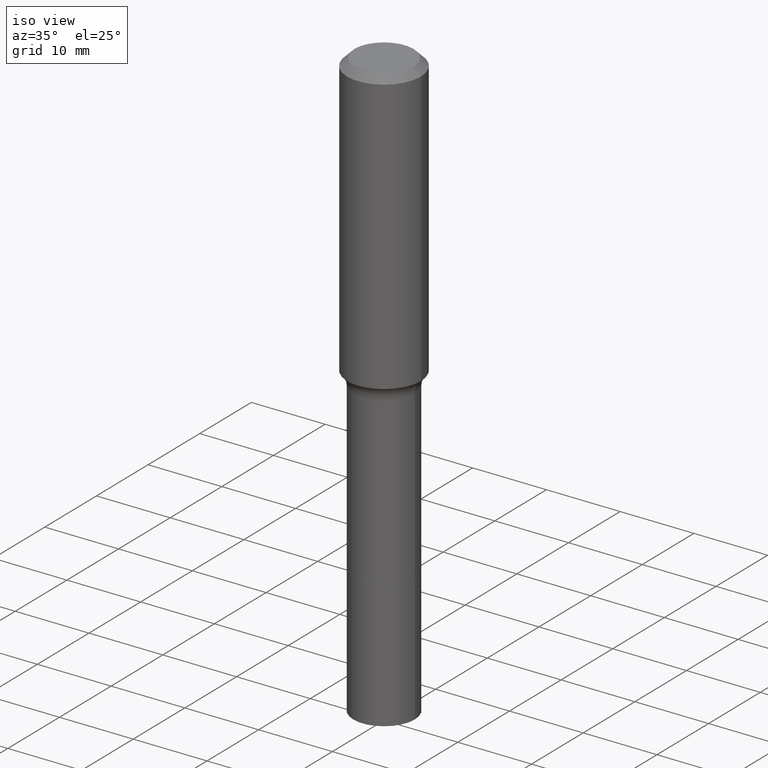
[diagram: clean part render]
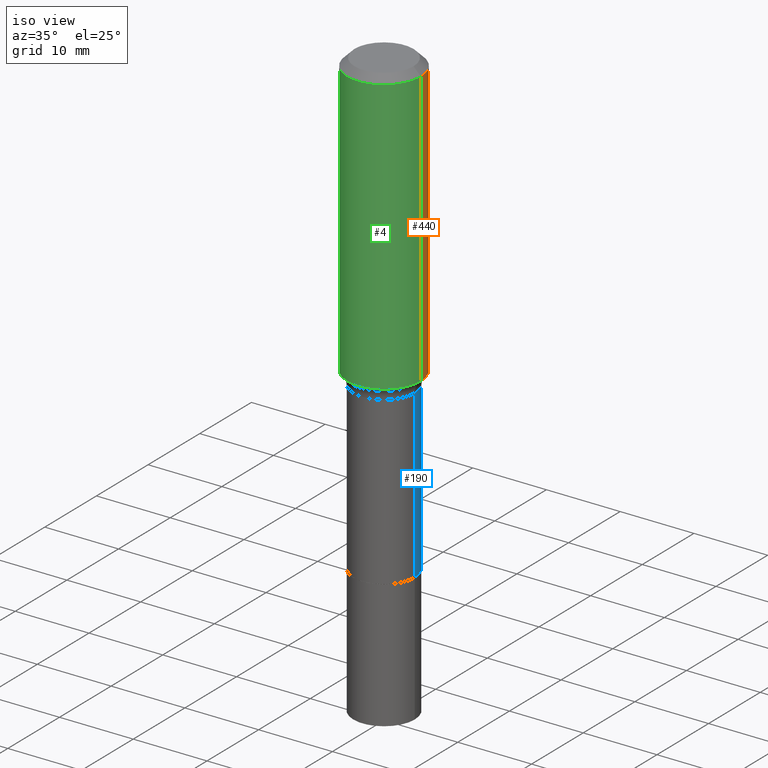
[diagram: same view with three faces highlighted in distinct colors, each labeled with its STEP entity id]
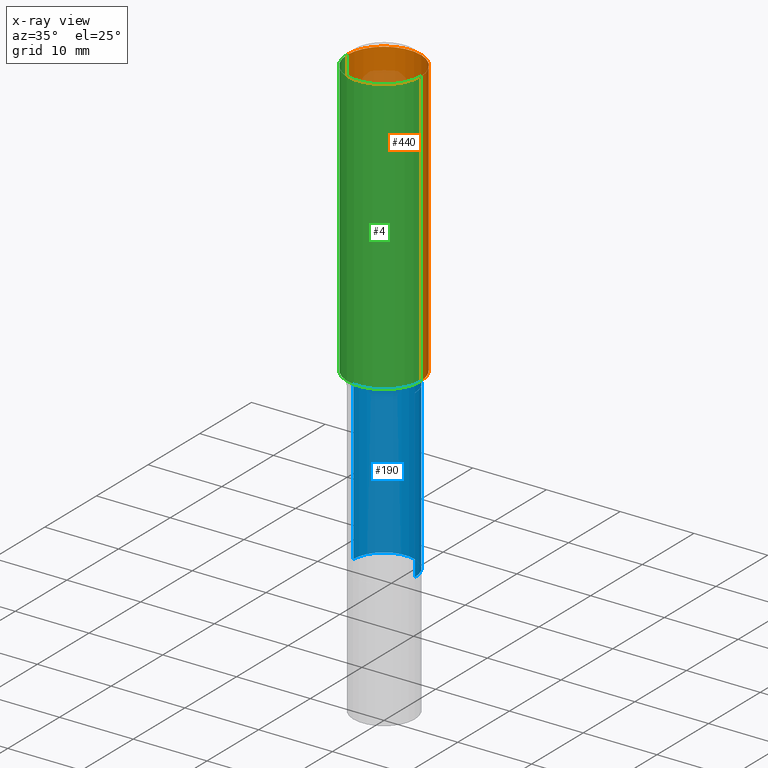
[diagram: x-ray of the same camera — body ghosted, the three highlighted faces saturated]
A machine part, iso view with three faces highlighted in distinct colors.
The next image is the same camera in x-ray (body ghosted, the three faces saturated) — at least one of them is partly hidden behind the body in this view.
Their STEP definitions:

[orange] entity #440 — the highlighted cylindrical surface (partial cylindrical patch) has radius 5 mm, axis along (-0, 0, 1).
#27 = CARTESIAN_POINT ( 'NONE',  ( -0.1968500000000000250, -1.302452302324870387E-15, -0.03937000000000025896 ) ) ;
#28 = VERTEX_POINT ( 'NONE', #80 ) ;
#36 = DIRECTION ( 'NONE',  ( -2.445468806185136597E-29, 3.491481338843145583E-15, 1.000000000000000000 ) ) ;
#43 = AXIS2_PLACEMENT_3D ( 'NONE', #213, #439, #87 ) ;
#46 = VERTEX_POINT ( 'NONE', #514 ) ;
#71 = ORIENTED_EDGE ( 'NONE', *, *, #250, .F. ) ;
#73 = CARTESIAN_POINT ( 'NONE',  ( 0.000000000000000000, 0.000000000000000000, 0.000000000000000000 ) ) ;
#80 = CARTESIAN_POINT ( 'NONE',  ( -0.1968500000000001915, -3.866148359683242586E-15, -1.507913468261995016 ) ) ;
#83 = AXIS2_PLACEMENT_3D ( 'NONE', #73, #36, #199 ) ;
#87 = DIRECTION ( 'NONE',  ( 1.000000000000000000, -6.982962677686265922E-15, 0.000000000000000000 ) ) ;
#103 = VERTEX_POINT ( 'NONE', #348 ) ;
#124 = VECTOR ( 'NONE', #137, 39.37007874015748143 ) ;
#127 = DIRECTION ( 'NONE',  ( -2.445468806185136597E-29, 3.491481338843145583E-15, 1.000000000000000000 ) ) ;
#137 = DIRECTION ( 'NONE',  ( -2.445468806185136877E-29, 3.491481338843145188E-15, 1.000000000000000000 ) ) ;
#145 = EDGE_CURVE ( 'NONE', #46, #311, #516, .T. ) ;
#199 = DIRECTION ( 'NONE',  ( 1.000000000000000000, -6.982962677686266711E-15, 4.876176775795935793E-29 ) ) ;
#213 = CARTESIAN_POINT ( 'NONE',  ( 9.627810689950945397E-31, -1.374596203102555315E-16, -0.03937000000000025896 ) ) ;
#221 = EDGE_CURVE ( 'NONE', #28, #311, #365, .T. ) ;
#250 = EDGE_CURVE ( 'NONE', #103, #46, #499, .T. ) ;
#287 = DIRECTION ( 'NONE',  ( 1.000000000000000000, -6.982962677686266711E-15, 0.000000000000000000 ) ) ;
#311 = VERTEX_POINT ( 'NONE', #27 ) ;
#315 = VECTOR ( 'NONE', #410, 39.37007874015748143 ) ;
#325 = CARTESIAN_POINT ( 'NONE',  ( 3.687555349061150252E-29, -5.264851735027001951E-15, -1.507913468261995016 ) ) ;
#342 = ORIENTED_EDGE ( 'NONE', *, *, #145, .F. ) ;
#348 = CARTESIAN_POINT ( 'NONE',  ( 0.1968500000000001915, -6.639447938129543559E-15, -1.507913468261995016 ) ) ;
#365 = LINE ( 'NONE', #452, #315 ) ;
#367 = CARTESIAN_POINT ( 'NONE',  ( 0.1968500000000001082, -1.374596203102542397E-15, 9.598753983154305062E-30 ) ) ;
#381 = EDGE_LOOP ( 'NONE', ( #426, #470, #342, #71 ) ) ;
#383 = CYLINDRICAL_SURFACE ( 'NONE', #83, 0.1968500000000001082 ) ;
#410 = DIRECTION ( 'NONE',  ( -2.445468806185136877E-29, 3.491481338843145188E-15, 1.000000000000000000 ) ) ;
#425 = FACE_OUTER_BOUND ( 'NONE', #381, .T. ) ;
#426 = ORIENTED_EDGE ( 'NONE', *, *, #508, .T. ) ;
#434 = CIRCLE ( 'NONE', #465, 0.1968500000000001915 ) ;
#439 = DIRECTION ( 'NONE',  ( -2.445468806185136597E-29, 3.491481338843145583E-15, 1.000000000000000000 ) ) ;
#440 = ADVANCED_FACE ( 'NONE', ( #425 ), #383, .T. ) ;
#452 = CARTESIAN_POINT ( 'NONE',  ( -0.1968500000000001082, 1.398703375343757985E-15, -9.682923725166787881E-30 ) ) ;
#465 = AXIS2_PLACEMENT_3D ( 'NONE', #325, #127, #287 ) ;
#470 = ORIENTED_EDGE ( 'NONE', *, *, #221, .T. ) ;
#499 = LINE ( 'NONE', #367, #124 ) ;
#508 = EDGE_CURVE ( 'NONE', #103, #28, #434, .T. ) ;
#514 = CARTESIAN_POINT ( 'NONE',  ( 0.1968500000000000250, -1.512055823412797189E-15, -0.03937000000000025896 ) ) ;
#516 = CIRCLE ( 'NONE', #43, 0.1968500000000000250 ) ;

[blue] entity #190 — the highlighted cylindrical surface (partial cylindrical patch) has radius 4.1669 mm, axis along (-0, 0, 1).
#29 = DIRECTION ( 'NONE',  ( 1.000000000000000000, -6.982962677686267499E-15, 0.000000000000000000 ) ) ;
#53 = AXIS2_PLACEMENT_3D ( 'NONE', #143, #262, #29 ) ;
#55 = EDGE_CURVE ( 'NONE', #220, #218, #388, .T. ) ;
#68 = CARTESIAN_POINT ( 'NONE',  ( 0.1640499999999999181, -6.643241543416849216E-15, -1.574600000000000222 ) ) ;
#99 = ORIENTED_EDGE ( 'NONE', *, *, #364, .T. ) ;
#111 = ORIENTED_EDGE ( 'NONE', *, *, #424, .T. ) ;
#116 = DIRECTION ( 'NONE',  ( 1.000000000000000000, -6.982962677686269077E-15, 0.000000000000000000 ) ) ;
#141 = CARTESIAN_POINT ( 'NONE',  ( 0.000000000000000000, 0.000000000000000000, 0.000000000000000000 ) ) ;
#143 = CARTESIAN_POINT ( 'NONE',  ( 3.850635182219116347E-29, -5.497686516142417553E-15, -1.574600000000000222 ) ) ;
#158 = CARTESIAN_POINT ( 'NONE',  ( -0.1640500000000000291, -5.884877483578459975E-15, -2.464099999999999735 ) ) ;
#184 = VERTEX_POINT ( 'NONE', #334 ) ;
#190 = ADVANCED_FACE ( 'NONE', ( #505 ), #446, .T. ) ;
#195 = DIRECTION ( 'NONE',  ( -2.445468806185136877E-29, 3.491481338843145188E-15, 1.000000000000000000 ) ) ;
#201 = CARTESIAN_POINT ( 'NONE',  ( 0.1640500000000000014, -1.145555027274432057E-15, 7.999368000693231542E-30 ) ) ;
#218 = VERTEX_POINT ( 'NONE', #68 ) ;
#219 = DIRECTION ( 'NONE',  ( 1.000000000000000000, -6.982962677686266711E-15, 4.876176775795935232E-29 ) ) ;
#220 = VERTEX_POINT ( 'NONE', #336 ) ;
#262 = DIRECTION ( 'NONE',  ( -2.445468806185136597E-29, 3.491481338843145583E-15, 1.000000000000000000 ) ) ;
#289 = VECTOR ( 'NONE', #195, 39.37007874015748143 ) ;
#304 = EDGE_CURVE ( 'NONE', #218, #184, #374, .T. ) ;
#309 = LINE ( 'NONE', #428, #289 ) ;
#317 = CARTESIAN_POINT ( 'NONE',  ( 6.025879685320794265E-29, -8.603359167043393887E-15, -2.464099999999999735 ) ) ;
#334 = CARTESIAN_POINT ( 'NONE',  ( -0.1640499999999999181, -5.884877483578461552E-15, -1.574600000000000222 ) ) ;
#336 = CARTESIAN_POINT ( 'NONE',  ( 0.1640500000000000291, -9.748914194317826338E-15, -2.464099999999999735 ) ) ;
#341 = DIRECTION ( 'NONE',  ( -2.445468806185136597E-29, 3.491481338843145583E-15, 1.000000000000000000 ) ) ;
#352 = DIRECTION ( 'NONE',  ( -2.445468806185136877E-29, 3.491481338843145188E-15, 1.000000000000000000 ) ) ;
#364 = EDGE_CURVE ( 'NONE', #366, #184, #309, .T. ) ;
#366 = VERTEX_POINT ( 'NONE', #158 ) ;
#374 = CIRCLE ( 'NONE', #53, 0.1640499999999999181 ) ;
#388 = LINE ( 'NONE', #201, #399 ) ;
#399 = VECTOR ( 'NONE', #352, 39.37007874015748143 ) ;
#424 = EDGE_CURVE ( 'NONE', #220, #366, #507, .T. ) ;
#428 = CARTESIAN_POINT ( 'NONE',  ( -0.1640500000000000014, 1.165645358014444365E-15, -8.069513015563172164E-30 ) ) ;
#435 = ORIENTED_EDGE ( 'NONE', *, *, #304, .F. ) ;
#442 = AXIS2_PLACEMENT_3D ( 'NONE', #317, #472, #116 ) ;
#446 = CYLINDRICAL_SURFACE ( 'NONE', #477, 0.1640500000000000014 ) ;
#454 = ORIENTED_EDGE ( 'NONE', *, *, #55, .F. ) ;
#472 = DIRECTION ( 'NONE',  ( -2.445468806185136597E-29, 3.491481338843145583E-15, 1.000000000000000000 ) ) ;
#477 = AXIS2_PLACEMENT_3D ( 'NONE', #141, #341, #219 ) ;
#493 = EDGE_LOOP ( 'NONE', ( #111, #99, #435, #454 ) ) ;
#505 = FACE_OUTER_BOUND ( 'NONE', #493, .T. ) ;
#507 = CIRCLE ( 'NONE', #442, 0.1640500000000000291 ) ;

[green] entity #4 — the highlighted cylindrical surface (partial cylindrical patch) has radius 5 mm, axis along (-0, 0, 1).
#3 = EDGE_LOOP ( 'NONE', ( #142, #486, #69, #491 ) ) ;
#4 = ADVANCED_FACE ( 'NONE', ( #74 ), #274, .T. ) ;
#27 = CARTESIAN_POINT ( 'NONE',  ( -0.1968500000000000250, -1.302452302324870387E-15, -0.03937000000000025896 ) ) ;
#28 = VERTEX_POINT ( 'NONE', #80 ) ;
#46 = VERTEX_POINT ( 'NONE', #514 ) ;
#52 = DIRECTION ( 'NONE',  ( 1.000000000000000000, -6.982962677686265922E-15, 0.000000000000000000 ) ) ;
#65 = AXIS2_PLACEMENT_3D ( 'NONE', #153, #235, #353 ) ;
#69 = ORIENTED_EDGE ( 'NONE', *, *, #250, .T. ) ;
#74 = FACE_OUTER_BOUND ( 'NONE', #3, .T. ) ;
#80 = CARTESIAN_POINT ( 'NONE',  ( -0.1968500000000001915, -3.866148359683242586E-15, -1.507913468261995016 ) ) ;
#92 = AXIS2_PLACEMENT_3D ( 'NONE', #455, #378, #52 ) ;
#103 = VERTEX_POINT ( 'NONE', #348 ) ;
#124 = VECTOR ( 'NONE', #137, 39.37007874015748143 ) ;
#137 = DIRECTION ( 'NONE',  ( -2.445468806185136877E-29, 3.491481338843145188E-15, 1.000000000000000000 ) ) ;
#140 = AXIS2_PLACEMENT_3D ( 'NONE', #431, #205, #166 ) ;
#142 = ORIENTED_EDGE ( 'NONE', *, *, #221, .F. ) ;
#153 = CARTESIAN_POINT ( 'NONE',  ( 3.687555349061150252E-29, -5.264851735027001951E-15, -1.507913468261995016 ) ) ;
#166 = DIRECTION ( 'NONE',  ( 1.000000000000000000, -6.982962677686266711E-15, 4.876176775795935793E-29 ) ) ;
#205 = DIRECTION ( 'NONE',  ( -2.445468806185136597E-29, 3.491481338843145583E-15, 1.000000000000000000 ) ) ;
#216 = CIRCLE ( 'NONE', #65, 0.1968500000000001915 ) ;
#221 = EDGE_CURVE ( 'NONE', #28, #311, #365, .T. ) ;
#235 = DIRECTION ( 'NONE',  ( -2.445468806185136597E-29, 3.491481338843145583E-15, 1.000000000000000000 ) ) ;
#250 = EDGE_CURVE ( 'NONE', #103, #46, #499, .T. ) ;
#274 = CYLINDRICAL_SURFACE ( 'NONE', #140, 0.1968500000000001082 ) ;
#283 = CIRCLE ( 'NONE', #92, 0.1968500000000000250 ) ;
#311 = VERTEX_POINT ( 'NONE', #27 ) ;
#315 = VECTOR ( 'NONE', #410, 39.37007874015748143 ) ;
#326 = EDGE_CURVE ( 'NONE', #311, #46, #283, .T. ) ;
#347 = EDGE_CURVE ( 'NONE', #28, #103, #216, .T. ) ;
#348 = CARTESIAN_POINT ( 'NONE',  ( 0.1968500000000001915, -6.639447938129543559E-15, -1.507913468261995016 ) ) ;
#353 = DIRECTION ( 'NONE',  ( 1.000000000000000000, -6.982962677686266711E-15, 0.000000000000000000 ) ) ;
#365 = LINE ( 'NONE', #452, #315 ) ;
#367 = CARTESIAN_POINT ( 'NONE',  ( 0.1968500000000001082, -1.374596203102542397E-15, 9.598753983154305062E-30 ) ) ;
#378 = DIRECTION ( 'NONE',  ( -2.445468806185136597E-29, 3.491481338843145583E-15, 1.000000000000000000 ) ) ;
#410 = DIRECTION ( 'NONE',  ( -2.445468806185136877E-29, 3.491481338843145188E-15, 1.000000000000000000 ) ) ;
#431 = CARTESIAN_POINT ( 'NONE',  ( 0.000000000000000000, 0.000000000000000000, 0.000000000000000000 ) ) ;
#452 = CARTESIAN_POINT ( 'NONE',  ( -0.1968500000000001082, 1.398703375343757985E-15, -9.682923725166787881E-30 ) ) ;
#455 = CARTESIAN_POINT ( 'NONE',  ( 9.627810689950945397E-31, -1.374596203102555315E-16, -0.03937000000000025896 ) ) ;
#486 = ORIENTED_EDGE ( 'NONE', *, *, #347, .T. ) ;
#491 = ORIENTED_EDGE ( 'NONE', *, *, #326, .F. ) ;
#499 = LINE ( 'NONE', #367, #124 ) ;
#514 = CARTESIAN_POINT ( 'NONE',  ( 0.1968500000000000250, -1.512055823412797189E-15, -0.03937000000000025896 ) ) ;